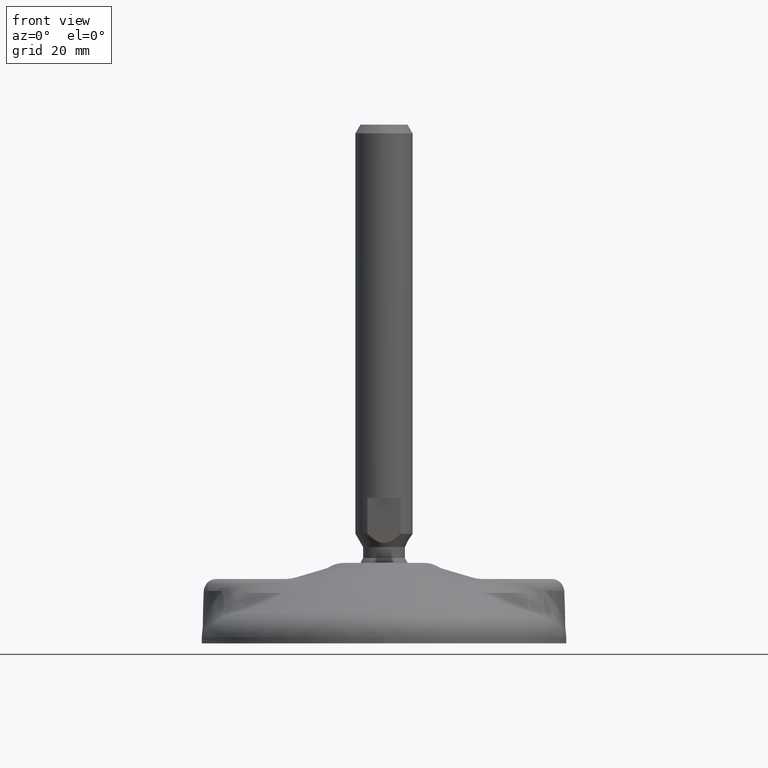
[diagram: clean part render]
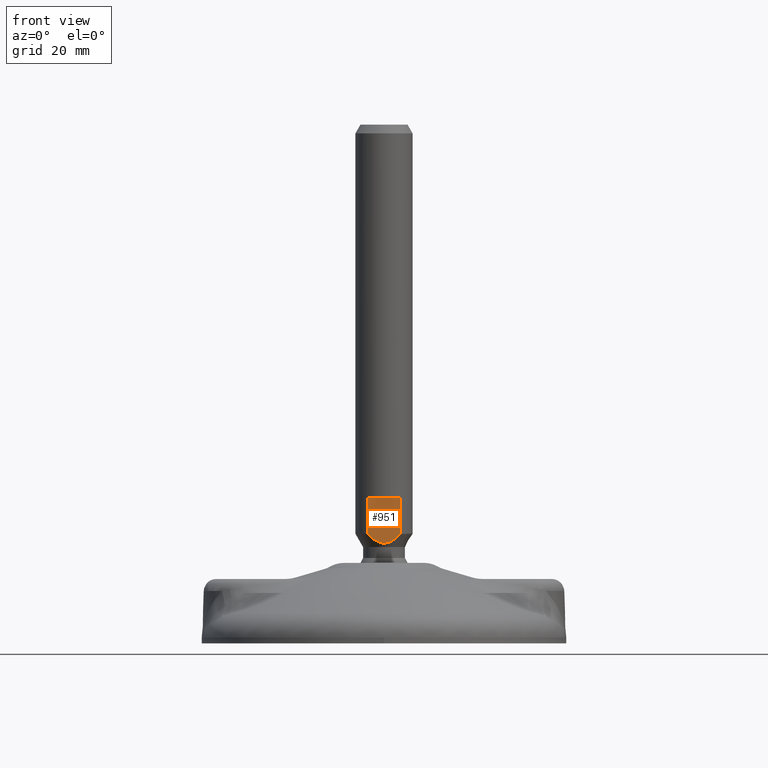
[diagram: same view with one face highlighted and labeled with its STEP entity id]
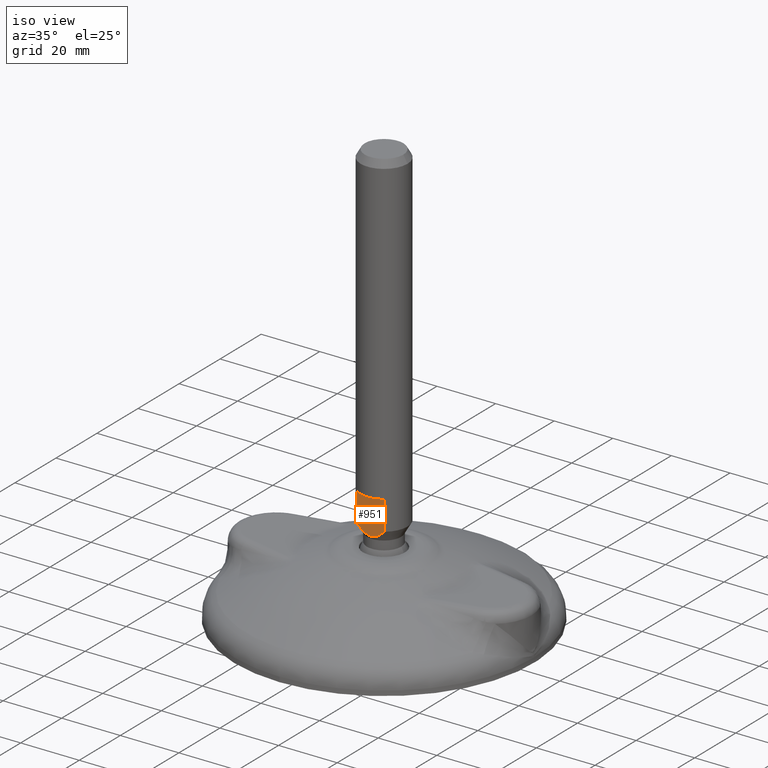
[diagram: same view with one face highlighted and labeled with its STEP entity id]
A machine part, front view. The second image highlights one B-rep face of the part: STEP entity #951.
A second angle (iso view) of the same face is appended — the face is thin or edge-on in the first view.
In plain terms, the highlighted planar face has unit normal (0, -1, 0).
Its self-contained STEP definition (entity closure, byte-faithful):
#14=(
BOUNDED_CURVE()
B_SPLINE_CURVE(2,(#5415,#5416,#5417),.UNSPECIFIED.,.F.,.F.)
B_SPLINE_CURVE_WITH_KNOTS((3,3),(-2.84575491727309,-0.888435866599749),
 .UNSPECIFIED.)
CURVE()
GEOMETRIC_REPRESENTATION_ITEM()
RATIONAL_B_SPLINE_CURVE((1.43798952122055,1.76983308666694,1.43798952502377))
REPRESENTATION_ITEM('')
);
#107=LINE('',#5397,#129);
#108=LINE('',#5401,#130);
#114=LINE('',#5436,#136);
#129=VECTOR('',#1308,1.);
#130=VECTOR('',#1311,1.);
#136=VECTOR('',#1345,1.);
#202=FACE_OUTER_BOUND('',#269,.T.);
#269=EDGE_LOOP('',(#807,#808,#809,#810));
#414=VERTEX_POINT('',#5394);
#415=VERTEX_POINT('',#5396);
#416=VERTEX_POINT('',#5398);
#417=VERTEX_POINT('',#5400);
#537=EDGE_CURVE('',#414,#415,#107,.T.);
#539=EDGE_CURVE('',#416,#417,#108,.F.);
#546=EDGE_CURVE('',#414,#417,#14,.T.);
#555=EDGE_CURVE('',#416,#415,#114,.T.);
#807=ORIENTED_EDGE('',*,*,#555,.T.);
#808=ORIENTED_EDGE('',*,*,#537,.F.);
#809=ORIENTED_EDGE('',*,*,#546,.T.);
#810=ORIENTED_EDGE('',*,*,#539,.F.);
#829=PLANE('',#1092);
#951=ADVANCED_FACE('',(#202),#829,.T.);
#1092=AXIS2_PLACEMENT_3D('',#5437,#1346,#1347);
#1308=DIRECTION('',(-1.3938299E-8,0.,1.));
#1311=DIRECTION('',(-1.3938299E-8,0.,1.));
#1345=DIRECTION('',(-1.,0.,0.));
#1346=DIRECTION('center_axis',(0.,-1.,0.));
#1347=DIRECTION('ref_axis',(0.,0.,-1.));
#5394=CARTESIAN_POINT('',(-4.66368979020848,-6.4999948783487,30.649214811608));
#5396=CARTESIAN_POINT('',(-4.66369054383021,-6.49999508071987,40.6492154013672));
#5397=CARTESIAN_POINT('',(-4.66369200853279,-6.49999508033994,145.649215336363));
#5398=CARTESIAN_POINT('',(4.66368781102494,-6.49999507996001,40.6492154013672));
#5400=CARTESIAN_POINT('',(4.66368730962043,-6.49999487938715,30.6492148339938));
#5401=CARTESIAN_POINT('',(4.66368634632238,-6.49999508033994,145.649215466371));
#5415=CARTESIAN_POINT('Ctrl Pts',(-4.66368944962876,-6.49999508033995,30.6492151489095));
#5416=CARTESIAN_POINT('Ctrl Pts',(-1.18427934125975E-6,-6.49999508033995,
25.9402002737259));
#5417=CARTESIAN_POINT('Ctrl Pts',(4.66368692744229,-6.49999508033994,30.6492152124932));
#5436=CARTESIAN_POINT('',(13.7738297328131,-6.49999508033994,40.6492154013672));
#5437=CARTESIAN_POINT('Origin',(-13.773832467981,-6.49999508033994,26.099421569004));